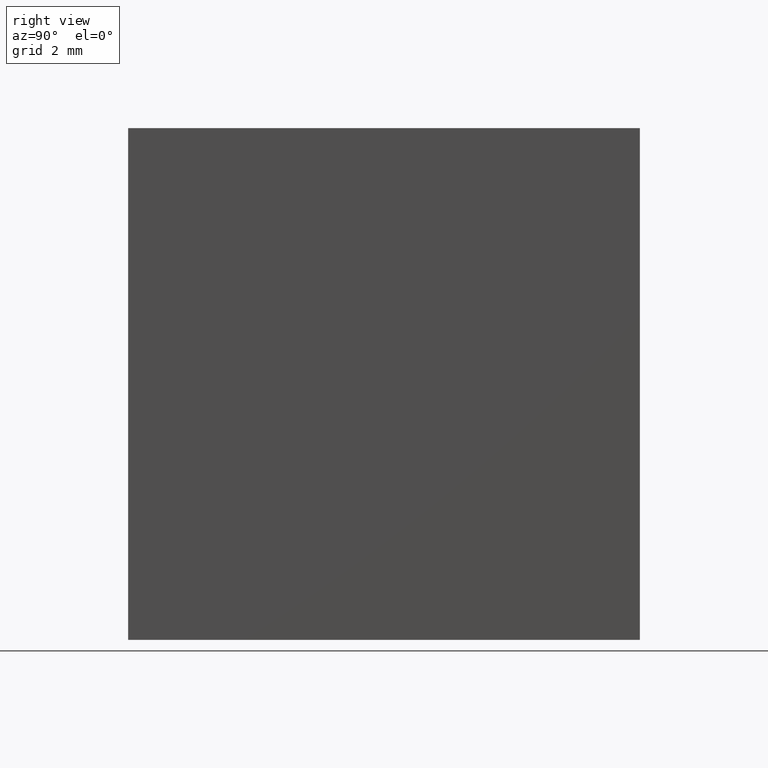
[diagram: clean part render]
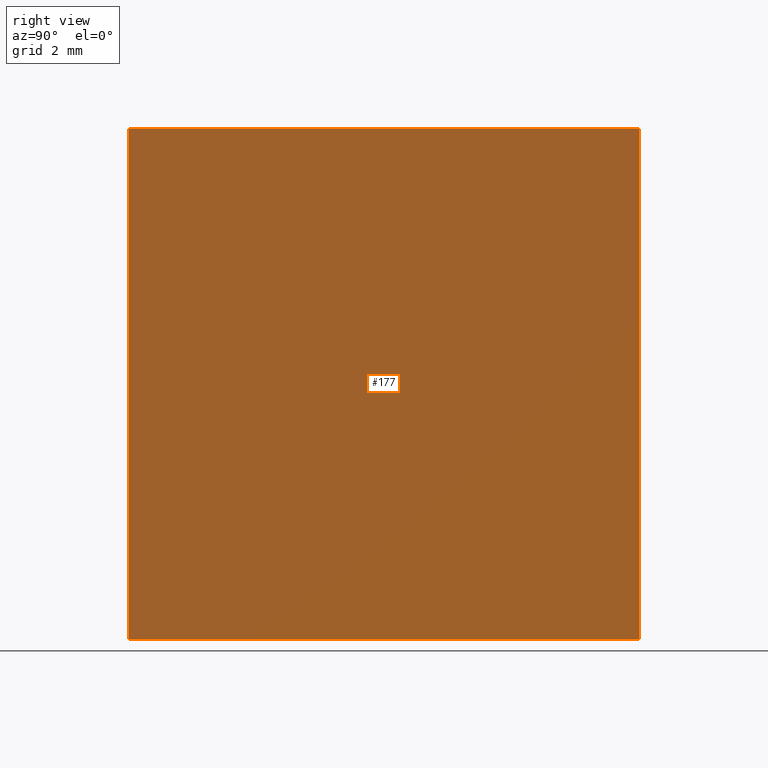
[diagram: same view with one face highlighted and labeled with its STEP entity id]
A machine part, right view. The second image highlights one B-rep face of the part: STEP entity #177.
In plain terms, the highlighted planar face has unit normal (-1, 0, 0).
Its self-contained STEP definition (entity closure, byte-faithful):
#6 = VERTEX_POINT ( 'NONE', #71 ) ;
#7 = VECTOR ( 'NONE', #141, 1000.000000000000000 ) ;
#16 = FACE_OUTER_BOUND ( 'NONE', #162, .T. ) ;
#23 = VERTEX_POINT ( 'NONE', #157 ) ;
#32 = DIRECTION ( 'NONE',  ( -0.0000000000000000000, -1.000000000000000000, -0.0000000000000000000 ) ) ;
#33 = DIRECTION ( 'NONE',  ( -6.123233995736766000E-017, -0.0000000000000000000, -1.000000000000000000 ) ) ;
#43 = ORIENTED_EDGE ( 'NONE', *, *, #123, .F. ) ;
#45 = CARTESIAN_POINT ( 'NONE',  ( 0.0000000000000000000, 10.00000000000000000, 0.0000000000000000000 ) ) ;
#55 = VERTEX_POINT ( 'NONE', #45 ) ;
#61 = VECTOR ( 'NONE', #32, 1000.000000000000000 ) ;
#64 = CARTESIAN_POINT ( 'NONE',  ( 6.123233995736766300E-016, 0.0000000000000000000, 10.00000000000000000 ) ) ;
#66 = LINE ( 'NONE', #98, #61 ) ;
#68 = EDGE_CURVE ( 'NONE', #6, #55, #195, .T. ) ;
#71 = CARTESIAN_POINT ( 'NONE',  ( 6.123233995736766300E-016, 10.00000000000000000, 10.00000000000000000 ) ) ;
#77 = CARTESIAN_POINT ( 'NONE',  ( 0.0000000000000000000, 0.0000000000000000000, 0.0000000000000000000 ) ) ;
#81 = DIRECTION ( 'NONE',  ( -1.000000000000000000, 0.0000000000000000000, 6.123233995736766000E-017 ) ) ;
#94 = ORIENTED_EDGE ( 'NONE', *, *, #174, .T. ) ;
#98 = CARTESIAN_POINT ( 'NONE',  ( 0.0000000000000000000, 10.00000000000000000, 0.0000000000000000000 ) ) ;
#110 = LINE ( 'NONE', #77, #7 ) ;
#112 = AXIS2_PLACEMENT_3D ( 'NONE', #168, #81, #191 ) ;
#119 = VECTOR ( 'NONE', #33, 1000.000000000000000 ) ;
#123 = EDGE_CURVE ( 'NONE', #55, #23, #66, .T. ) ;
#130 = DIRECTION ( 'NONE',  ( -0.0000000000000000000, -1.000000000000000000, -0.0000000000000000000 ) ) ;
#136 = EDGE_CURVE ( 'NONE', #6, #184, #169, .T. ) ;
#141 = DIRECTION ( 'NONE',  ( -6.123233995736766000E-017, -0.0000000000000000000, -1.000000000000000000 ) ) ;
#145 = ORIENTED_EDGE ( 'NONE', *, *, #68, .F. ) ;
#148 = ORIENTED_EDGE ( 'NONE', *, *, #136, .T. ) ;
#151 = CARTESIAN_POINT ( 'NONE',  ( 0.0000000000000000000, 10.00000000000000000, 0.0000000000000000000 ) ) ;
#157 = CARTESIAN_POINT ( 'NONE',  ( 0.0000000000000000000, 0.0000000000000000000, 0.0000000000000000000 ) ) ;
#162 = EDGE_LOOP ( 'NONE', ( #94, #43, #145, #148 ) ) ;
#168 = CARTESIAN_POINT ( 'NONE',  ( 0.0000000000000000000, 10.00000000000000000, 0.0000000000000000000 ) ) ;
#169 = LINE ( 'NONE', #180, #202 ) ;
#171 = PLANE ( 'NONE',  #112 ) ;
#174 = EDGE_CURVE ( 'NONE', #184, #23, #110, .T. ) ;
#177 = ADVANCED_FACE ( 'NONE', ( #16 ), #171, .F. ) ;
#180 = CARTESIAN_POINT ( 'NONE',  ( 6.123233995736766300E-016, 10.00000000000000000, 10.00000000000000000 ) ) ;
#184 = VERTEX_POINT ( 'NONE', #64 ) ;
#191 = DIRECTION ( 'NONE',  ( 6.123233995736766000E-017, 0.0000000000000000000, 1.000000000000000000 ) ) ;
#195 = LINE ( 'NONE', #151, #119 ) ;
#202 = VECTOR ( 'NONE', #130, 1000.000000000000000 ) ;